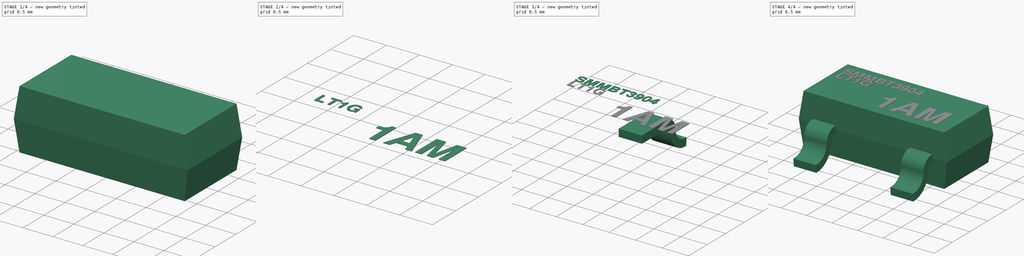
[diagram: build sequence overview — one tinted view per stage of 4, left to right]
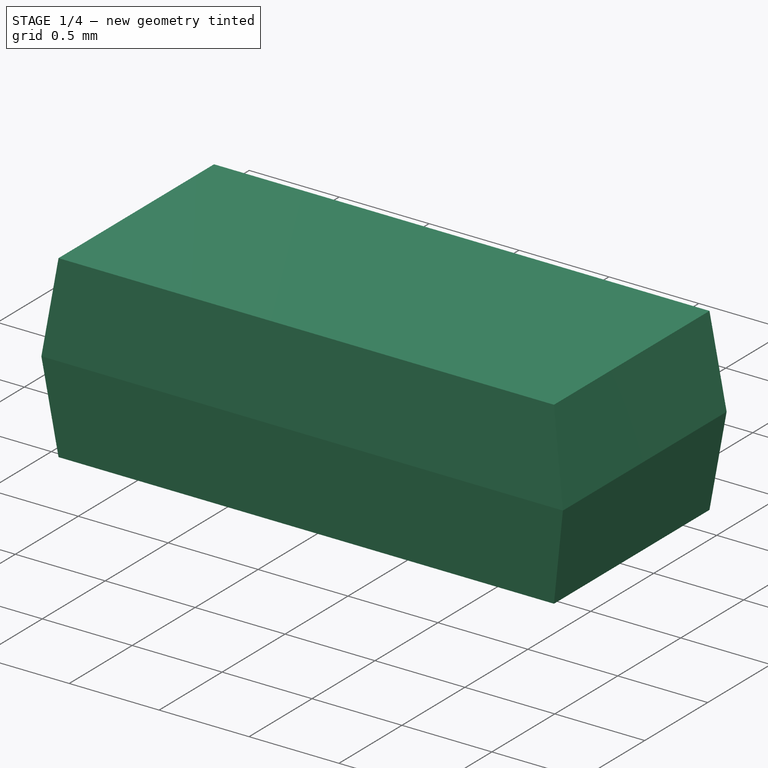
[diagram: stage 1 of 4 — iso view after this stage's code; geometry added in this stage tinted green]
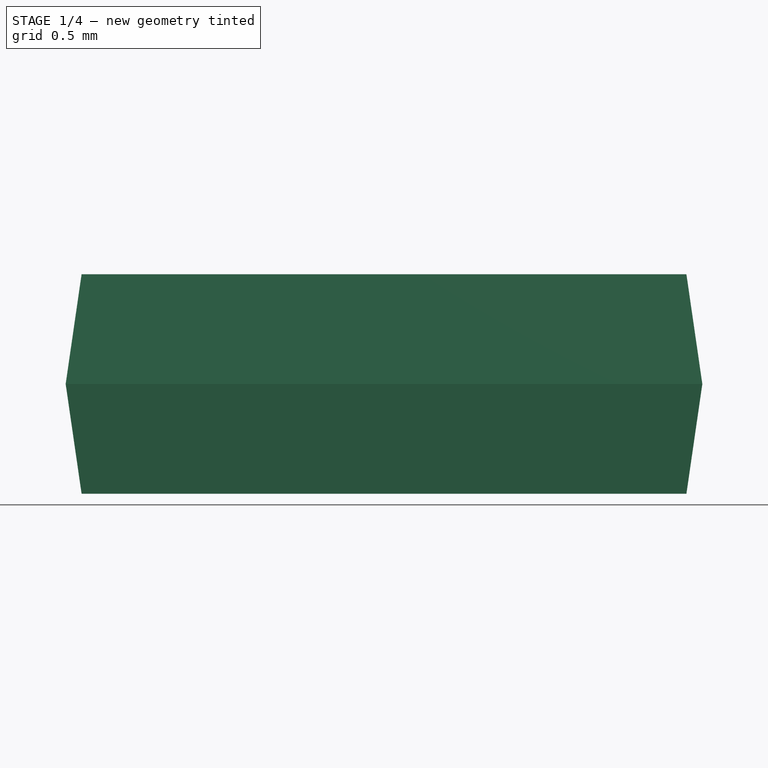
[diagram: stage 1 of 4 — front view after this stage's code; geometry added in this stage tinted green]
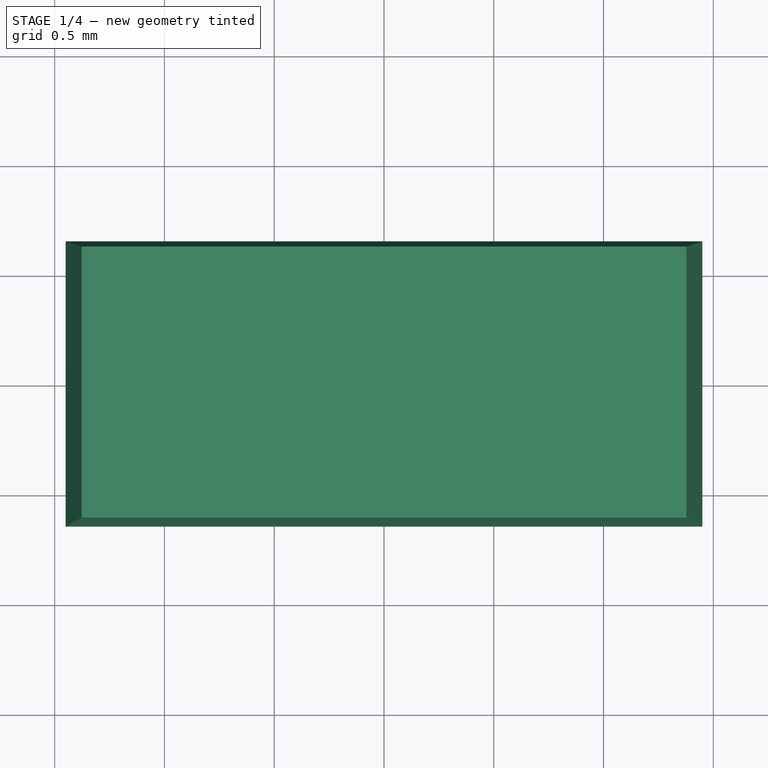
[diagram: stage 1 of 4 — top view after this stage's code; geometry added in this stage tinted green]
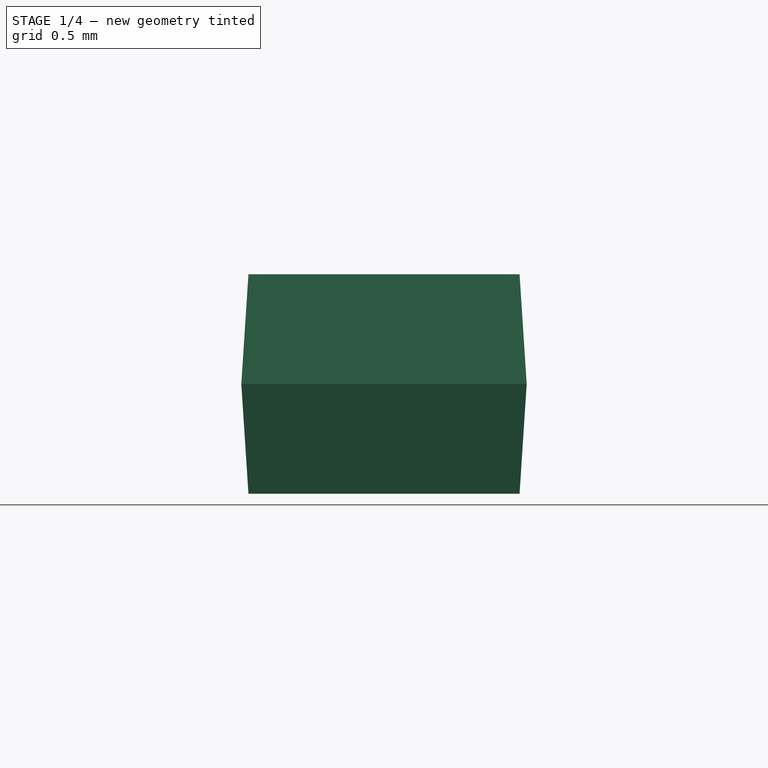
[diagram: stage 1 of 4 — right view after this stage's code; geometry added in this stage tinted green]
FCSTD DOCUMENT  (FreeCAD 0.19R16945 (Git))
Label: SOT_23
License: All rights reserved
LicenseURL: http://en.wikipedia.org/wiki/All_rights_reserved
objects: PartDesign::Body×4, Sketcher::SketchObject×3, Part::Part2DObjectPython×3, Part::Extrusion×3, PartDesign::FeatureBase×2, Spreadsheet::Sheet×1, PartDesign::AdditiveLoft×1, PartDesign::Plane×1, PartDesign::Mirrored×1, PartDesign::Pad×1, Part::MultiFuse×1
note: 22 computed .brp shape members not serialized (recipe doc carries the construction recipe); baked Part::Feature solids carry a one-line shape summary decoded from their .brp

FEATURE [Spreadsheet::Sheet] Spreadsheet
  cells = A1=SOT-23; B1=NOM; A2=d_A; B2(d_A)==1mm; A3=d_A1; B3(d_A1)==0.06mm; A4=d_b; B4(d_b)==0.44mm; A5=d_c; B5(d_c)==0.14mm; A6=d_D; B6(d_D)==2.9mm; A7=d_E; B7(d_E)==1.3mm; A8=d_e; B8(d_e)==1.9mm; A9=d_L; B9(d_L)==0.43mm; A10=d_L1; B10(d_L1)==0.54mm; A11=d_HE; B11(d_HE)==2.4mm; A12=d_T; B12(d_T)=2; A14=d_C; B14(d_C)=0.95
FEATURE [Sketcher::SketchObject] Sketch
  AttachmentOffset = pos=(0,0,0.56) rot=(0,0,1;0rad)
  MapMode = 5
  Placement = pos=(0,0,0.56) rot=(0,0,1;0rad)
  Support = -> [XY_Plane]
  expr: AttachmentOffset.Base.z = Spreadsheet.d_A1 + Spreadsheet.d_A / 2
  expr: Constraints[10] = Spreadsheet.d_E
  expr: Constraints[9] = Spreadsheet.d_D
  sketch-geometry (4):
    g0: LineSegment StartX=-1.45 StartY=0.65 StartZ=0 EndX=1.45 EndY=0.65 EndZ=0
    g1: LineSegment StartX=1.45 StartY=0.65 StartZ=0 EndX=1.45 EndY=-0.65 EndZ=0
    g2: LineSegment StartX=1.45 StartY=-0.65 StartZ=0 EndX=-1.45 EndY=-0.65 EndZ=0
    g3: LineSegment StartX=-1.45 StartY=-0.65 StartZ=0 EndX=-1.45 EndY=0.65 EndZ=0
  constraints (11):
    c: Coincident(g0,g1)
    c: Coincident(g1,g2)
    c: Coincident(g2,g3)
    c: Coincident(g3,g0)
    c: Horizontal(g0)
    c: Horizontal(g2)
    c: Vertical(g1)
    c: Vertical(g3)
    c: Symmetric(g0,g2,g-1)
    c: DistanceX(g0,g0) = 2.9
    c: DistanceY(g3,g3) = 1.3
FEATURE [Sketcher::SketchObject] Sketch001
  AttachmentOffset = pos=(0,0,0.06) rot=(0,0,1;0rad)
  MapMode = 5
  Placement = pos=(0,0,0.06) rot=(0,0,1;0rad)
  Support = -> [XY_Plane]
  expr: AttachmentOffset.Base.z = Spreadsheet.d_A1
  expr: Constraints[10] = Spreadsheet.d_E * Spreadsheet.d_C
  expr: Constraints[9] = Spreadsheet.d_D * Spreadsheet.d_C
  sketch-geometry (4):
    g0: LineSegment StartX=-1.3775 StartY=0.6175 StartZ=0 EndX=1.3775 EndY=0.6175 EndZ=0
    g1: LineSegment StartX=1.3775 StartY=0.6175 StartZ=0 EndX=1.3775 EndY=-0.6175 EndZ=0
    g2: LineSegment StartX=1.3775 StartY=-0.6175 StartZ=0 EndX=-1.3775 EndY=-0.6175 EndZ=0
    g3: LineSegment StartX=-1.3775 StartY=-0.6175 StartZ=0 EndX=-1.3775 EndY=0.6175 EndZ=0
  constraints (11):
    c: Coincident(g0,g1)
    c: Coincident(g1,g2)
    c: Coincident(g2,g3)
    c: Coincident(g3,g0)
    c: Horizontal(g0)
    c: Horizontal(g2)
    c: Vertical(g1)
    c: Vertical(g3)
    c: Symmetric(g0,g2,g-1)
    c: DistanceX(g0,g0) = 2.755
    c: DistanceY(g3,g3) = 1.235
FEATURE [PartDesign::AdditiveLoft] AdditiveLoft
  Closed = true
  Profile = -> Sketch001
  Ruled = false
  Sections = -> [Sketch]
FEATURE [PartDesign::Plane] DatumPlane
  AttachmentOffset = pos=(0,0,0.56) rot=(0,0,1;0rad)
  Length = 24
  MapMode = 5
  Placement = pos=(0,0,0.56) rot=(0,0,1;0rad)
  ResizeMode = 0
  Support = -> [XY_Plane]
  Width = 24
  expr: AttachmentOffset.Base.z = Spreadsheet.d_A1 + Spreadsheet.d_A / 2
FEATURE [PartDesign::Mirrored] Mirrored
  BaseFeature = -> AdditiveLoft
  MirrorPlane = -> DatumPlane
  Originals = -> [AdditiveLoft]
  Refine = true
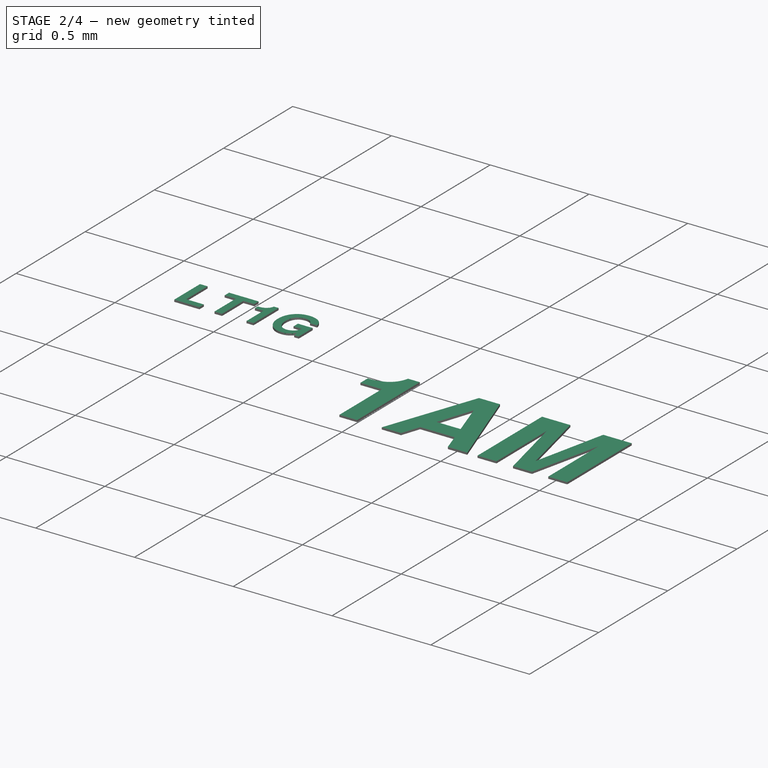
[diagram: stage 2 of 4 — iso view after this stage's code; geometry added in this stage tinted green]
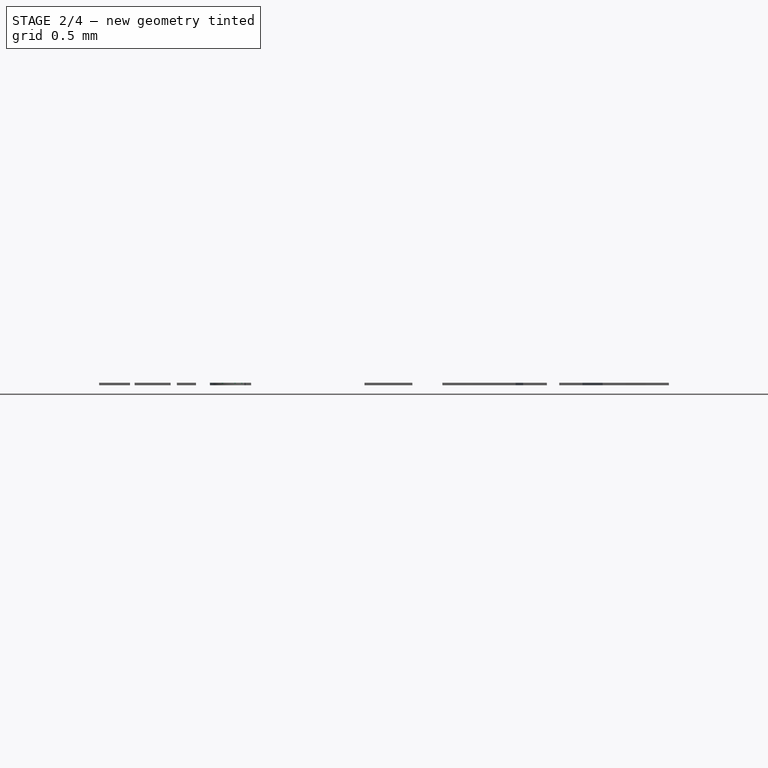
[diagram: stage 2 of 4 — front view after this stage's code; geometry added in this stage tinted green]
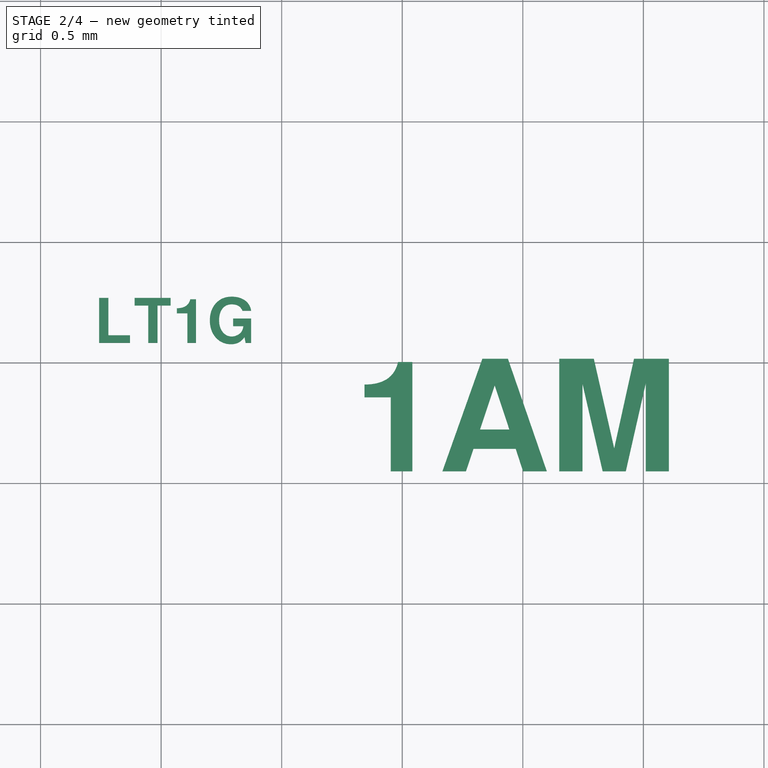
[diagram: stage 2 of 4 — top view after this stage's code; geometry added in this stage tinted green]
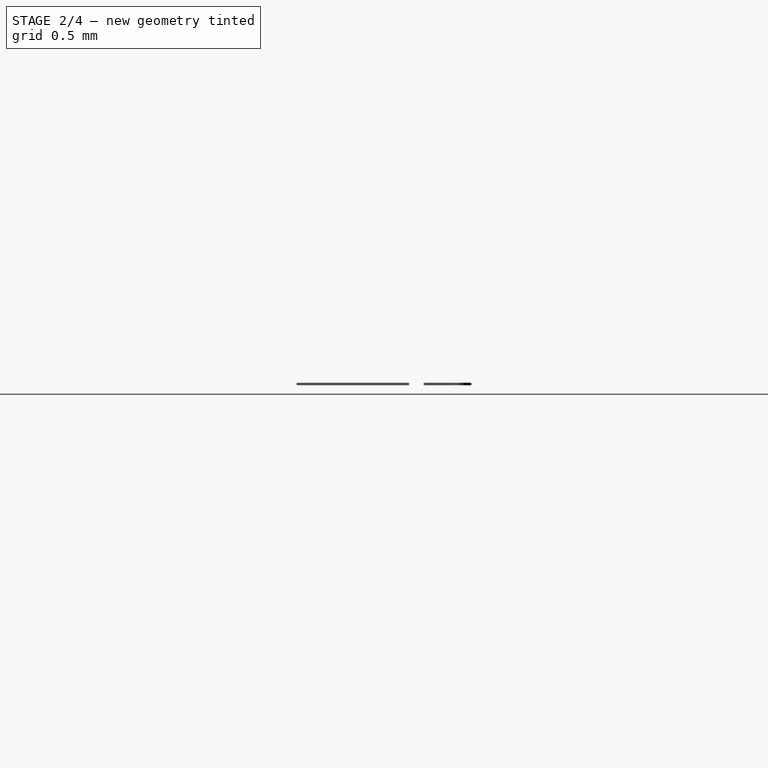
[diagram: stage 2 of 4 — right view after this stage's code; geometry added in this stage tinted green]
FEATURE [Part::Extrusion] Extrude001
  Base = -> ShapeString001
  Dir = (0,0,1)
  DirMode = 2
  FaceMakerClass = Part::FaceMakerBullseye
  LengthFwd = 0.01
  LengthRev = 0
  Solid = false
  Symmetric = false
FEATURE [Part::Part2DObjectPython] ShapeString002  # Draft 2D object (typed FeaturePython)
  AttachmentOffset = pos=(-0.1,-0.7,0) rot=(0,0,1;3.14159rad)
  FontFile = <userpath>/Desktop/GitHub/freecad-projects/00-fonts/FreeSansBold.ttf
  MapMode = 6
  Placement = pos=(-1.2775,0.0825,1.06) rot=(0,0,1;0rad)
  Size = 0.1
  String = LT1G
  Support = -> [Mirrored]
  Tracking = 0
FEATURE [Part::Extrusion] Extrude002
  Base = -> ShapeString002
  Dir = (0,0,1)
  DirMode = 2
  FaceMakerClass = Part::FaceMakerBullseye
  LengthFwd = 0.01
  LengthRev = 0
  Solid = false
  Symmetric = false
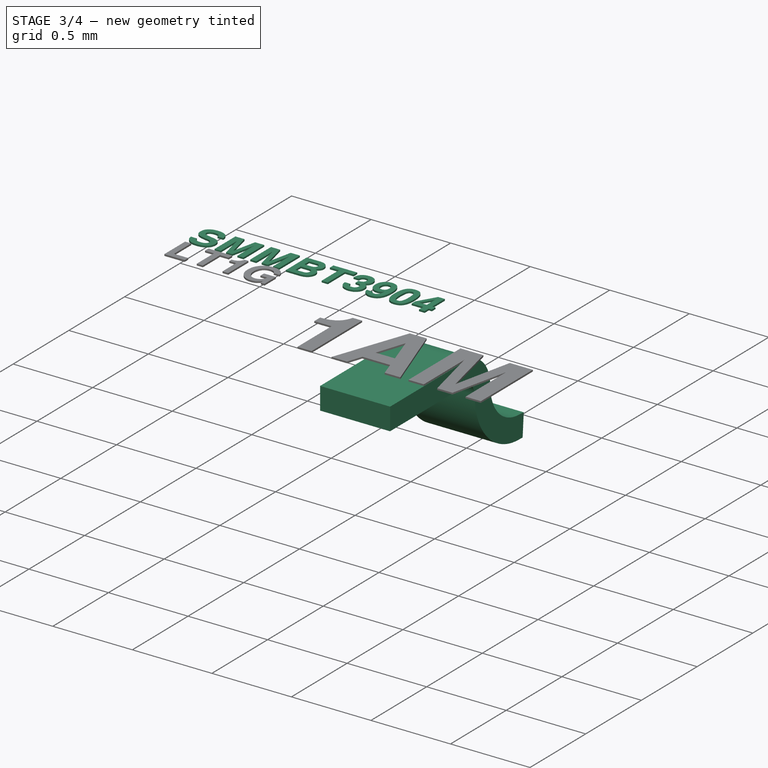
[diagram: stage 3 of 4 — iso view after this stage's code; geometry added in this stage tinted green]
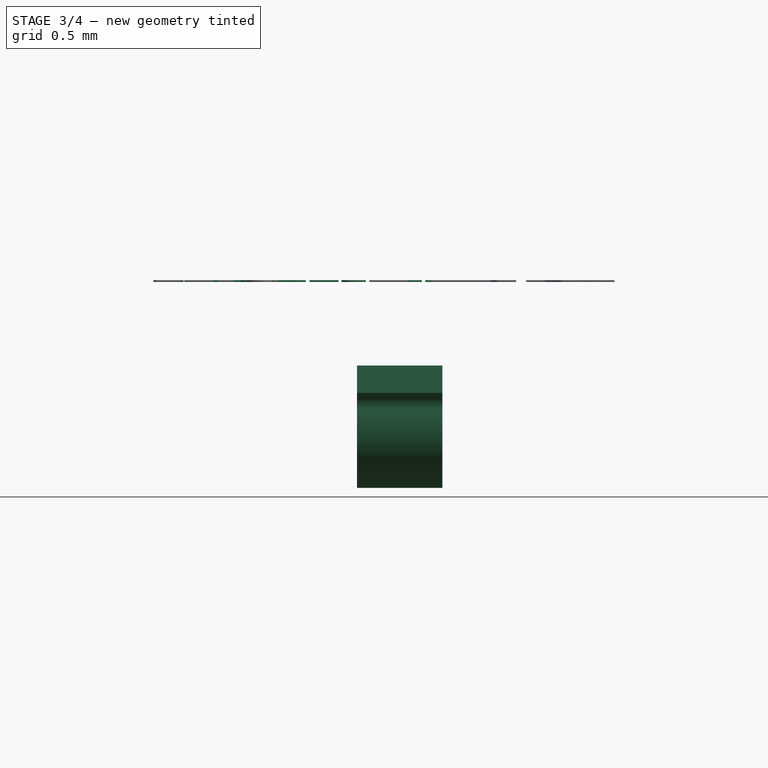
[diagram: stage 3 of 4 — front view after this stage's code; geometry added in this stage tinted green]
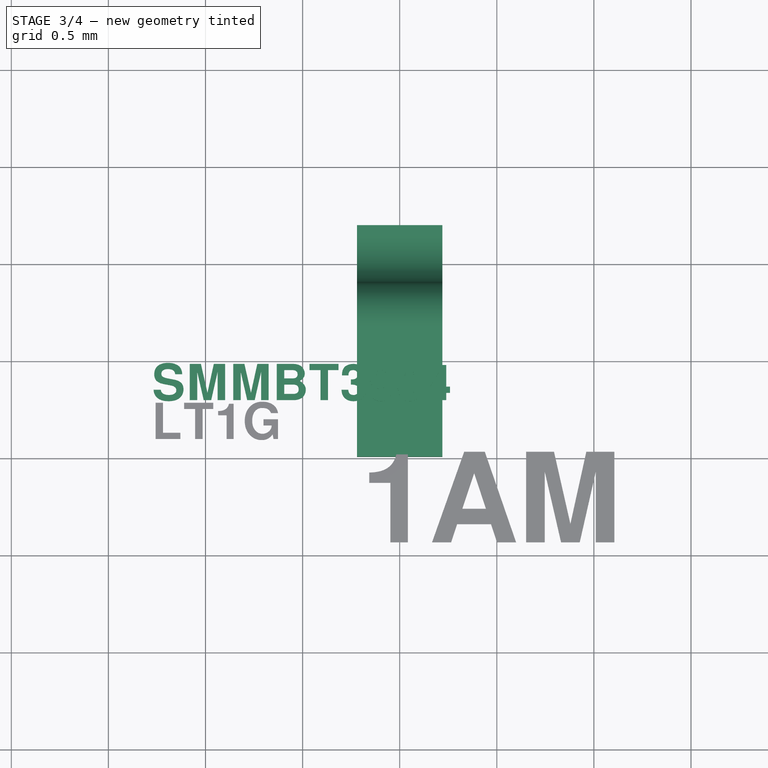
[diagram: stage 3 of 4 — top view after this stage's code; geometry added in this stage tinted green]
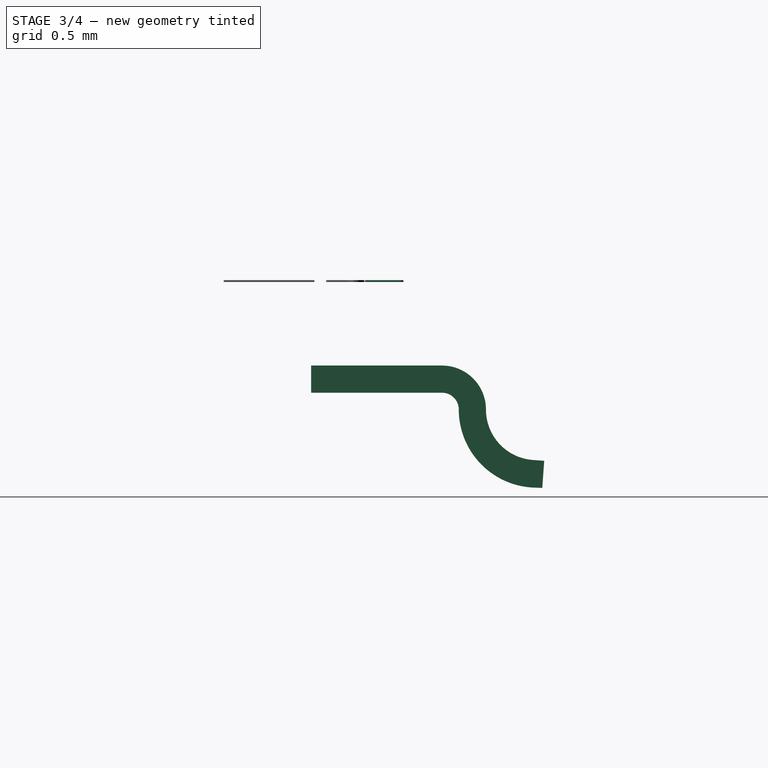
[diagram: stage 3 of 4 — right view after this stage's code; geometry added in this stage tinted green]
FEATURE [PartDesign::Body] Body  label="Housing"
  Group = -> [Sketch,Sketch001,AdditiveLoft,DatumPlane,Mirrored]
  Origin = -> Origin
  Tip = -> Mirrored
FEATURE [Sketcher::SketchObject] Sketch002
  MapMode = 5
  Placement = pos=(0,0,0) rot=(0.57735,0.57735,0.57735;2.0944rad)
  Support = -> [YZ_Plane001]
  expr: Constraints[34] = Spreadsheet.d_E / 2 + Spreadsheet.d_L1 - Spreadsheet.d_L
  expr: Constraints[31] = Spreadsheet.d_c
  expr: Constraints[23] = Spreadsheet.d_T
  sketch-geometry (15):
    g0: LineSegment StartX=0 StartY=0.49 StartZ=0 EndX=0.673908 EndY=0.49 EndZ=0
    g1: LineSegment StartX=0 StartY=0.63 StartZ=0 EndX=0.673908 EndY=0.63 EndZ=0
    g2: GeomPoint X=0 Y=0.56 Z=0
    g3: LineSegment StartX=0.76 StartY=0.403908 StartZ=0 EndX=0.76 EndY=0.403604 EndZ=0
    g4: ArcOfCircle CenterX=0.673908 CenterY=0.403908 CenterZ=0 NormalX=0 NormalY=0 NormalZ=1 AngleXU=0 Radius=0.0860915 StartAngle=0 EndAngle=1.5708
    g5: LineSegment StartX=0.9 StartY=0.403908 StartZ=0 EndX=0.9 EndY=0.403604 EndZ=0
    g6: ArcOfCircle CenterX=0.673908 CenterY=0.403908 CenterZ=0 NormalX=0 NormalY=0 NormalZ=1 AngleXU=0 Radius=0.226092 StartAngle=0 EndAngle=1.5708
    g7: ArcOfCircle CenterX=1.16239 CenterY=0.403604 CenterZ=0 NormalX=0 NormalY=0 NormalZ=1 AngleXU=0 Radius=0.402394 StartAngle=3.14159 EndAngle=4.67748
    g8: ArcOfCircle CenterX=1.16046 CenterY=0.403604 CenterZ=0 NormalX=0 NormalY=0 NormalZ=1 AngleXU=0 Radius=0.260463 StartAngle=3.14159 EndAngle=4.6409
    g9: LineSegment StartX=1.14835 StartY=0.00145442 StartZ=0 EndX=1.19 EndY=0 EndZ=0
    g10: LineSegment StartX=1.14186 StartY=0.143806 StartZ=0 EndX=1.2 EndY=0.139642 EndZ=0
    g11: LineSegment StartX=1.2 StartY=0.139642 StartZ=0 EndX=1.19 EndY=0 EndZ=0
    g12: LineSegment StartX=0 StartY=0.63 StartZ=0 EndX=0 EndY=0.49 EndZ=0
    g13: LineSegment [constr] StartX=1.16239 StartY=0.403604 StartZ=0 EndX=0.76 EndY=0.403603 EndZ=0
    g14: LineSegment [constr] StartX=1.16046 StartY=0.403604 StartZ=0 EndX=0.9 EndY=0.403603 EndZ=0
  constraints (35):
    c: PointOnObject(g0,g-2)
    c: PointOnObject(g1,g-2)
    c: Horizontal(g1)
    c: Horizontal(g0)
    c: DistanceY(g0,g1) = 0.14
    c: Symmetric(g1,g0,g2)
    c: DistanceY(g2) = 0.56
    c: Vertical(g3)
    c: Tangent(g0,g4) = 1.5708
    c: Tangent(g3,g4) = 1.5708
    c: Vertical(g5)
    c: Tangent(g1,g6) = 1.5708
    c: Tangent(g5,g6) = 1.5708
    c: Coincident(g11,g10)
    c: Coincident(g11,g9)
    c: Perpendicular(g11,g10)
    c: Distance(g11) = 0.14
    c: DistanceX(g3,g9) = 0.43
    c: DistanceX(g1,g10) = 1.2
    c: Tangent(g9,g7) = -1.5708
    c: Coincident(g12,g1)
    c: Coincident(g12,g0)
    c: PointOnObject(g9,g-1)
    c: Angle(g9,g-1) = 0.0349066
    c: Tangent(g7,g3) = -1.5708
    c: Tangent(g10,g8) = -1.5708
    c: Tangent(g8,g5) = -1.5708
    c: Coincident(g13,g7)
    c: Coincident(g14,g8)
    c: PointOnObject(g14,g8)
    c: PointOnObject(g13,g7)
    c: Distance(g13,g14) = 0.14
    c: Parallel(g13,g14)
    c: PointOnObject(g8,g13)
    c: DistanceX(g-1,g3) = 0.76
FEATURE [PartDesign::Pad] Pad
  Length = 0.44
  Length2 = 100
  Midplane = true
  Placement = pos=(0,0,0) rot=(0.57735,0.57735,0.57735;2.0944rad)
  Profile = -> Sketch002
  Refine = true
  Type = 0
  expr: Length = Spreadsheet.d_b
FEATURE [PartDesign::Body] Body002  label="Pin_1"
  BaseFeature = -> Body001
  Group = -> [Clone]
  Origin = -> Origin002
  Placement = pos=(-0.95,0,0) rot=(0,0,1;3.14159rad)
  Tip = -> Clone
  expr: Placement.Base.x = -Spreadsheet.d_e / 2
FEATURE [PartDesign::FeatureBase] Clone001
  BaseFeature = -> Body001
FEATURE [PartDesign::Body] Body003  label="Pin_2"
  BaseFeature = -> Body001
  Group = -> [Clone001]
  Origin = -> Origin003
  Placement = pos=(0.95,0,0) rot=(0,0,1;3.14159rad)
  Tip = -> Clone001
  expr: Placement.Base.x = Spreadsheet.d_e / 2
FEATURE [Part::Part2DObjectPython] ShapeString  # Draft 2D object (typed FeaturePython)
  AttachmentOffset = pos=(-0.1,-0.9,0) rot=(0,0,-1;3.14159rad)
  FontFile = <userpath>/Desktop/GitHub/freecad-projects/00-fonts/FreeSansBold.ttf
  MapMode = 6
  Placement = pos=(-1.2775,0.2825,1.06) rot=(0,0,1;0rad)
  Size = 0.1
  String = SMMBT3904
  Support = -> [Mirrored]
  Tracking = 0
FEATURE [Part::Part2DObjectPython] ShapeString001  # Draft 2D object (typed FeaturePython)
  FontFile = <userpath>/Desktop/GitHub/freecad-projects/00-fonts/FreeSansBold.ttf
  Placement = pos=(-0.2,-0.45,1.06) rot=(0,0,-1;0rad)
  Size = 0.25
  String = 1AM
  Tracking = 0
FEATURE [Part::Extrusion] Extrude
  Base = -> ShapeString
  Dir = (0,0,1)
  DirMode = 2
  FaceMakerClass = Part::FaceMakerBullseye
  LengthFwd = 0.01
  LengthRev = 0
  Solid = false
  Symmetric = false
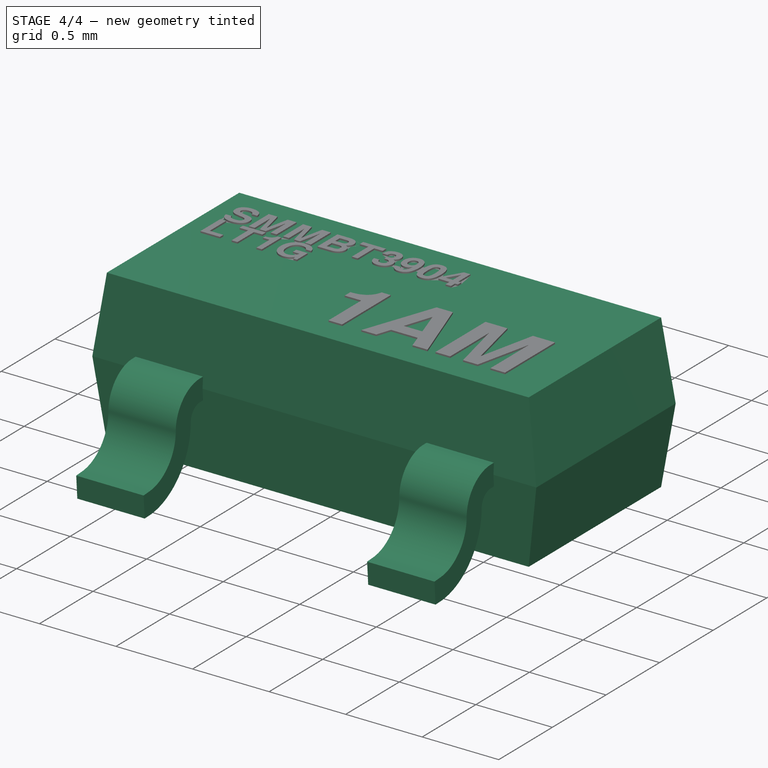
[diagram: stage 4 of 4 — iso view after this stage's code; geometry added in this stage tinted green]
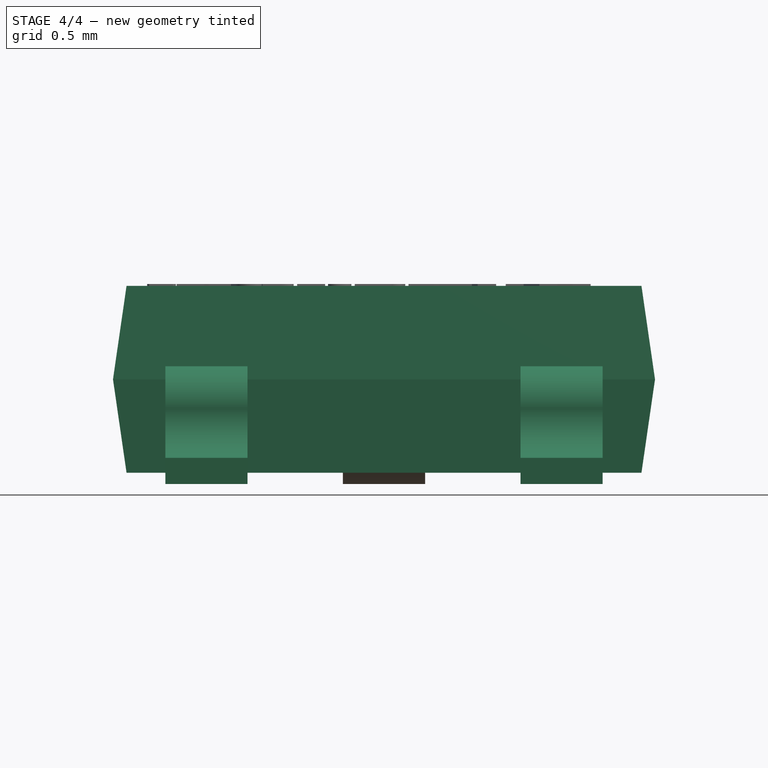
[diagram: stage 4 of 4 — front view after this stage's code; geometry added in this stage tinted green]
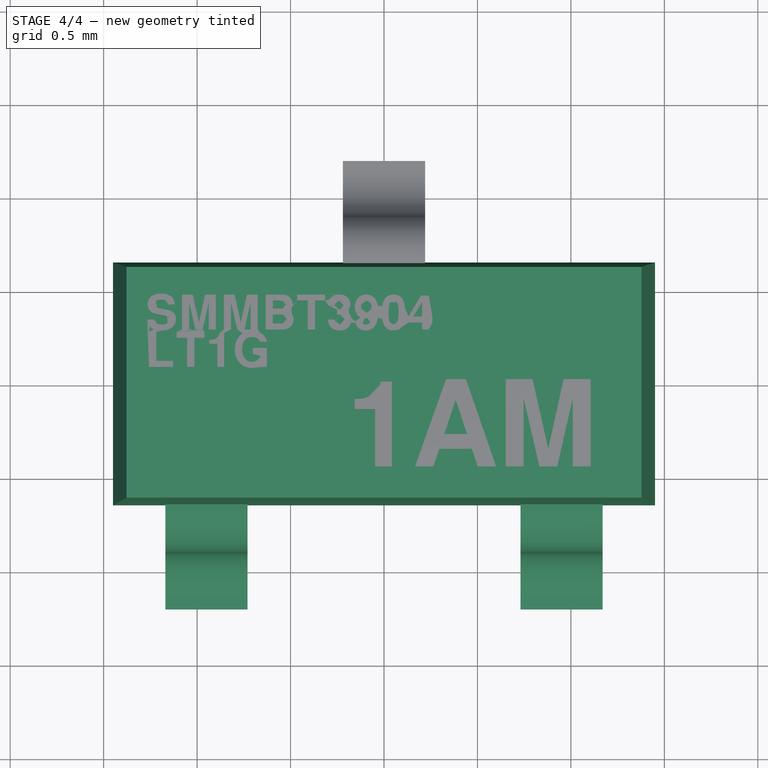
[diagram: stage 4 of 4 — top view after this stage's code; geometry added in this stage tinted green]
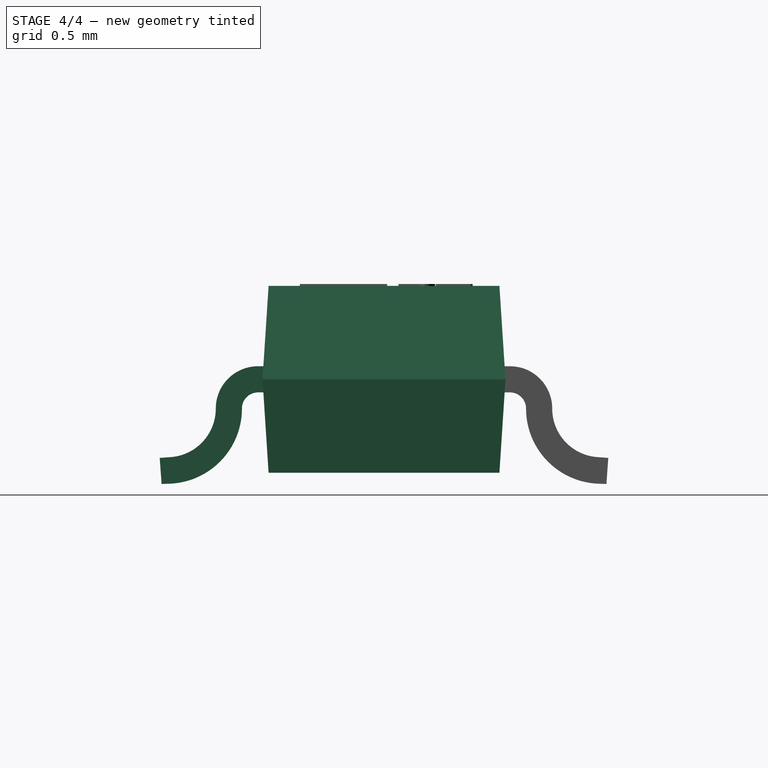
[diagram: stage 4 of 4 — right view after this stage's code; geometry added in this stage tinted green]
FEATURE [PartDesign::Body] Body001  label="Pin_3"
  Group = -> [Sketch002,Pad]
  Origin = -> Origin001
  Tip = -> Pad
  expr: Placement.Rotation.Angle = 0
FEATURE [PartDesign::FeatureBase] Clone
  BaseFeature = -> Body001
FEATURE [Part::MultiFuse] Fusion  label="SMMBT3904"
  Shapes = -> [Body,Body001,Extrude002,Extrude,Extrude001,Body003,Body002]
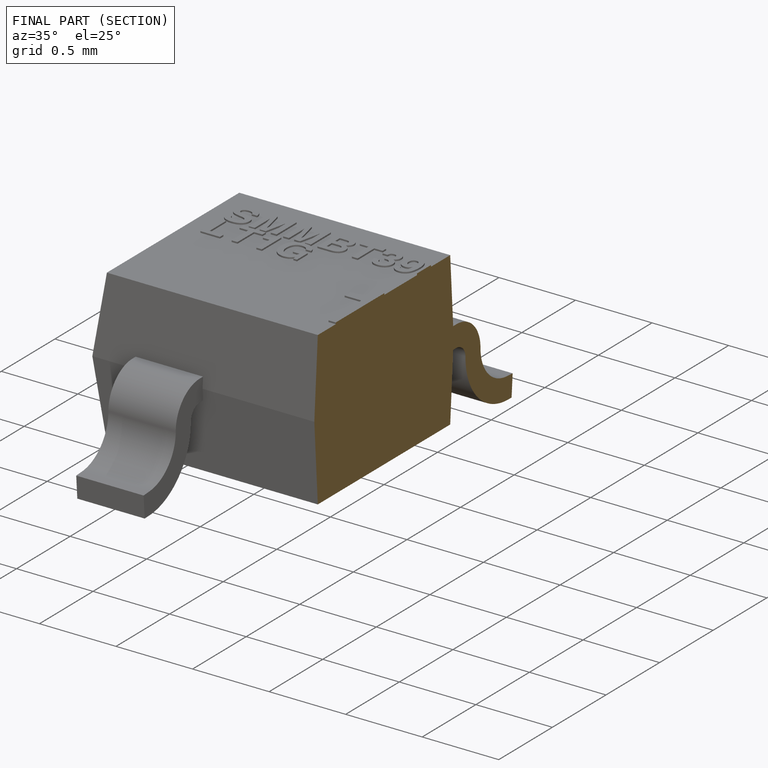
[diagram: finished part — half-section view (interior)]
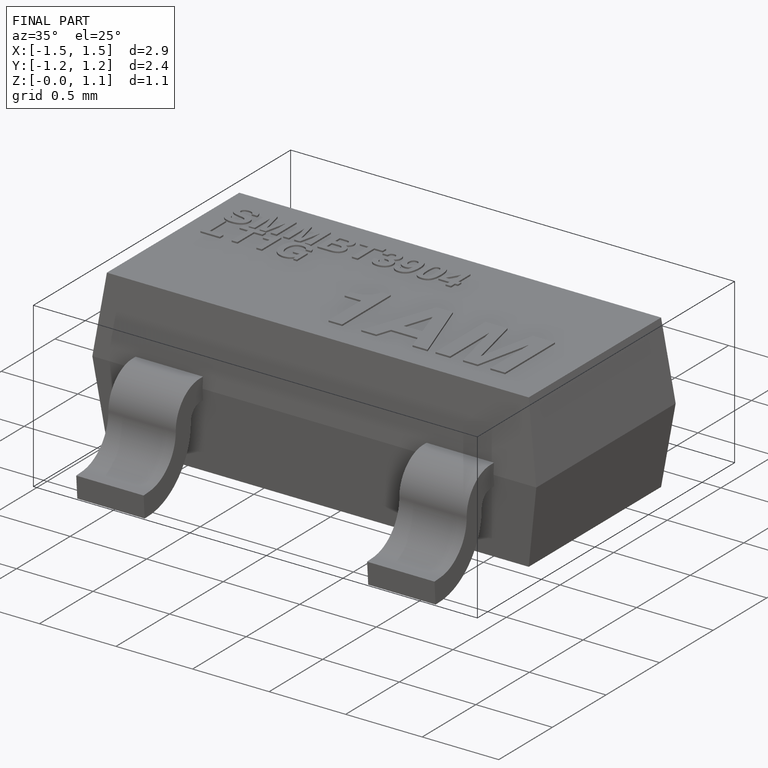
[diagram: finished part — iso view with bounding-box wireframe]
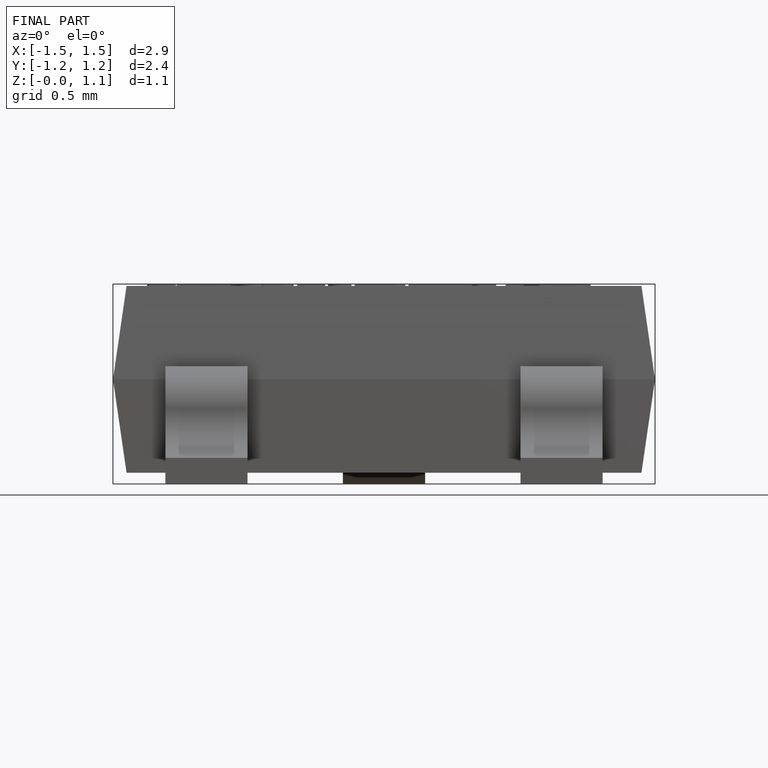
[diagram: finished part — front view with bounding-box wireframe]
